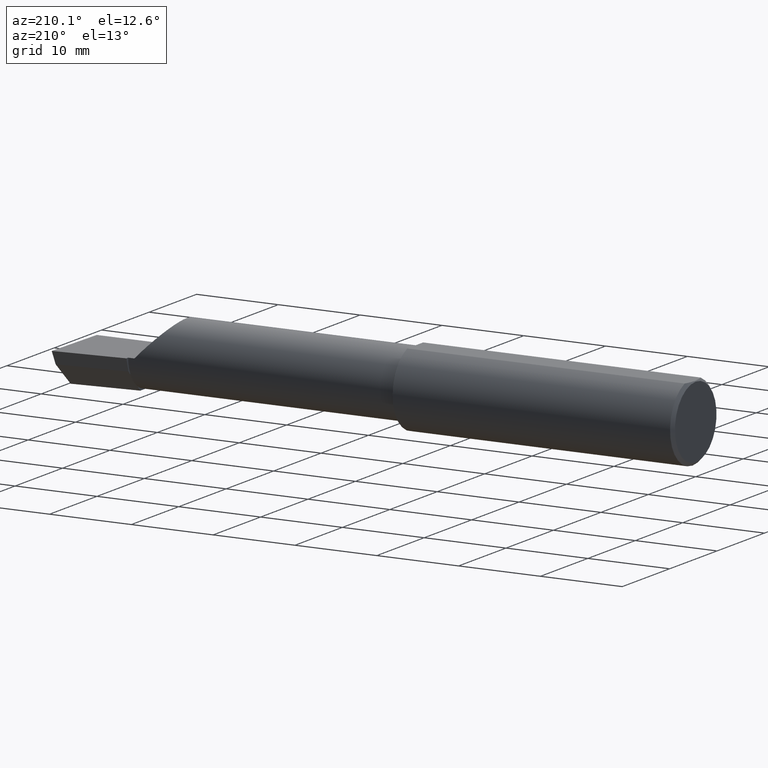
[diagram: clean part render]
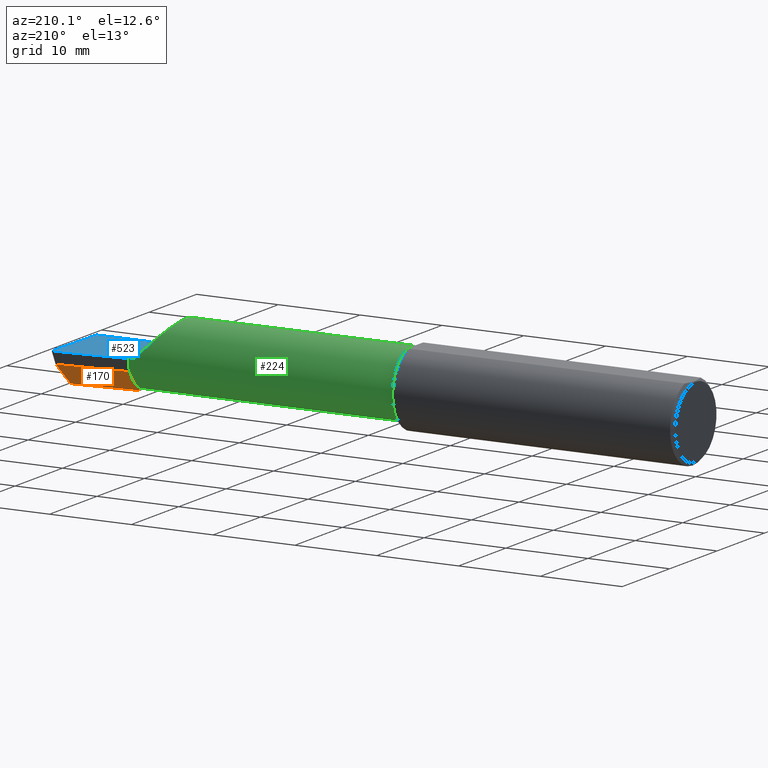
[diagram: same view with three faces highlighted in distinct colors, each labeled with its STEP entity id]
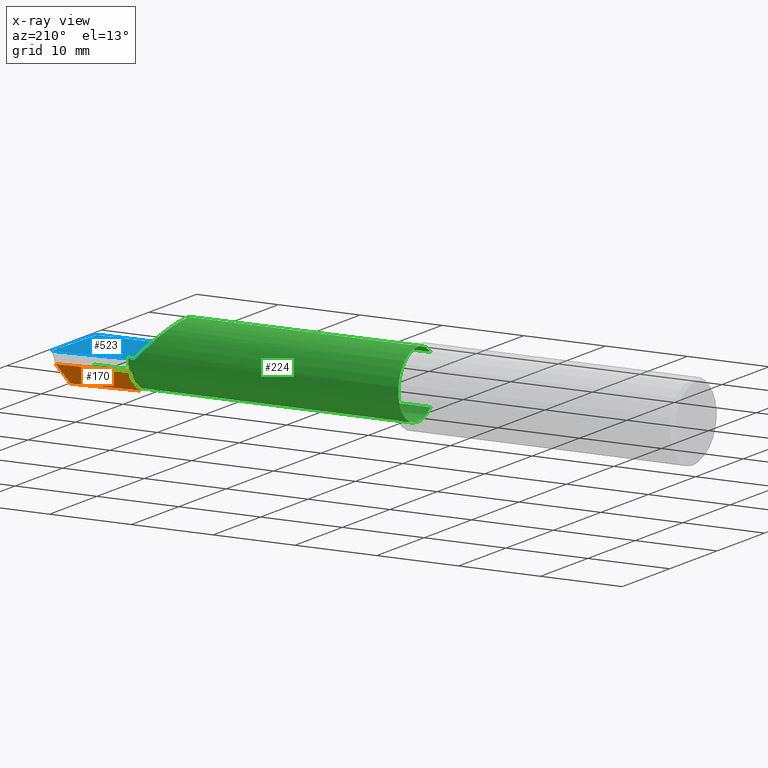
[diagram: x-ray of the same camera — body ghosted, the three highlighted faces saturated]
A machine part, auxiliary view with three faces highlighted in distinct colors.
The next image is the same camera in x-ray (body ghosted, the three faces saturated) — at least one of them is partly hidden behind the body in this view.
Their STEP definitions:

[orange] entity #170 — the highlighted planar face has unit normal (-0.0689, 0.716, -0.6947).
#5 = ORIENTED_EDGE ( 'NONE', *, *, #344, .F. ) ;
#7 = DIRECTION ( 'NONE',  ( -0.06894566448119619773, 0.7160281025913033393, -0.6946583704589935904 ) ) ;
#16 = CARTESIAN_POINT ( 'NONE',  ( 3.011712141217648409, 0.1533490680423131303, -0.06000000000000001166 ) ) ;
#18 = PLANE ( 'NONE',  #258 ) ;
#23 = CARTESIAN_POINT ( 'NONE',  ( 2.659999999999999698, 0.02241901528670484783, -0.1600499999999999701 ) ) ;
#29 = LINE ( 'NONE', #219, #221 ) ;
#30 = CARTESIAN_POINT ( 'NONE',  ( 2.977259974483422056, 0.05296767626088463160, -0.1600499999999999701 ) ) ;
#34 = EDGE_CURVE ( 'NONE', #195, #368, #29, .T. ) ;
#43 = CARTESIAN_POINT ( 'NONE',  ( 2.659999999999999698, 0.1010446066476774901, -0.07900565447499383054 ) ) ;
#69 = VECTOR ( 'NONE', #390, 39.37007874015748854 ) ;
#70 = DIRECTION ( 'NONE',  ( -0.9953961983671800740, -0.09584575252021031166, 0.0000000000000000000 ) ) ;
#78 = EDGE_CURVE ( 'NONE', #266, #195, #428, .T. ) ;
#80 = CARTESIAN_POINT ( 'NONE',  ( 3.011712141217648409, 0.1533490680423131303, -0.06000000000000001166 ) ) ;
#88 = DIRECTION ( 'NONE',  ( 0.1053106618241837072, 0.6976485211320172519, 0.7086580314005208603 ) ) ;
#115 = LINE ( 'NONE', #43, #318 ) ;
#152 = EDGE_CURVE ( 'NONE', #304, #427, #330, .T. ) ;
#160 = DIRECTION ( 'NONE',  ( -3.962974135542378872E-18, -0.6963153109074927682, -0.7177360153954946975 ) ) ;
#169 = DIRECTION ( 'NONE',  ( -3.962974135542378872E-18, -0.6963153109074927682, -0.7177360153954946975 ) ) ;
#170 = ADVANCED_FACE ( 'NONE', ( #244 ), #18, .T. ) ;
#177 = CARTESIAN_POINT ( 'NONE',  ( 2.659999999999999698, 0.1010446066476774901, -0.07900565447499383054 ) ) ;
#182 = CARTESIAN_POINT ( 'NONE',  ( 2.991169618080469661, 0.05430702260361114364, -0.1600499999999999701 ) ) ;
#187 = ORIENTED_EDGE ( 'NONE', *, *, #78, .F. ) ;
#195 = VERTEX_POINT ( 'NONE', #461 ) ;
#214 = DIRECTION ( 'NONE',  ( -3.962974135542378872E-18, -0.6963153109074927682, -0.7177360153954946975 ) ) ;
#219 = CARTESIAN_POINT ( 'NONE',  ( 2.659999999999999698, 0.1010446066476774901, -0.07900565447499383054 ) ) ;
#221 = VECTOR ( 'NONE', #214, 39.37007874015748143 ) ;
#230 = VECTOR ( 'NONE', #88, 39.37007874015748854 ) ;
#243 = ORIENTED_EDGE ( 'NONE', *, *, #404, .F. ) ;
#244 = FACE_OUTER_BOUND ( 'NONE', #360, .T. ) ;
#258 = AXIS2_PLACEMENT_3D ( 'NONE', #16, #7, #348 ) ;
#266 = VERTEX_POINT ( 'NONE', #431 ) ;
#298 = VECTOR ( 'NONE', #169, 39.37007874015748143 ) ;
#304 = VERTEX_POINT ( 'NONE', #434 ) ;
#318 = VECTOR ( 'NONE', #160, 39.37007874015748143 ) ;
#330 = LINE ( 'NONE', #80, #363 ) ;
#338 = ORIENTED_EDGE ( 'NONE', *, *, #518, .T. ) ;
#342 = VERTEX_POINT ( 'NONE', #30 ) ;
#344 = EDGE_CURVE ( 'NONE', #427, #266, #115, .T. ) ;
#348 = DIRECTION ( 'NONE',  ( 0.0000000000000000000, 0.6963153109074926572, 0.7177360153954946975 ) ) ;
#360 = EDGE_LOOP ( 'NONE', ( #243, #338, #421, #187, #5, #438 ) ) ;
#363 = VECTOR ( 'NONE', #70, 39.37007874015748854 ) ;
#368 = VERTEX_POINT ( 'NONE', #23 ) ;
#390 = DIRECTION ( 'NONE',  ( -0.9953961983671800740, -0.09584575252021028391, 0.0000000000000000000 ) ) ;
#396 = CARTESIAN_POINT ( 'NONE',  ( 2.992483720199182518, 0.1538199878950239075, -0.05760614975163596413 ) ) ;
#403 = LINE ( 'NONE', #396, #230 ) ;
#404 = EDGE_CURVE ( 'NONE', #342, #304, #403, .T. ) ;
#419 = CARTESIAN_POINT ( 'NONE',  ( 2.659999999999999698, 0.1194830407249522775, -0.06000000000000001860 ) ) ;
#421 = ORIENTED_EDGE ( 'NONE', *, *, #34, .F. ) ;
#427 = VERTEX_POINT ( 'NONE', #419 ) ;
#428 = LINE ( 'NONE', #177, #298 ) ;
#431 = CARTESIAN_POINT ( 'NONE',  ( 2.659999999999999698, 0.1028057716897403662, -0.07719031082256620768 ) ) ;
#434 = CARTESIAN_POINT ( 'NONE',  ( 2.992127980275562482, 0.1514633278254524928, -0.06000000000000001166 ) ) ;
#438 = ORIENTED_EDGE ( 'NONE', *, *, #152, .F. ) ;
#461 = CARTESIAN_POINT ( 'NONE',  ( 2.659999999999999698, 0.04400172171466146948, -0.1378033461200735832 ) ) ;
#467 = LINE ( 'NONE', #182, #69 ) ;
#518 = EDGE_CURVE ( 'NONE', #342, #368, #467, .T. ) ;

[blue] entity #523 — the highlighted planar face has unit normal (-0, 0, -1).
#8 = CARTESIAN_POINT ( 'NONE',  ( 3.000000000000000444, -0.2500000000000000555, -6.829619984160658046E-17 ) ) ;
#13 = CARTESIAN_POINT ( 'NONE',  ( 2.660000000000000142, 0.1226500000000000368, 3.563723795045364098E-16 ) ) ;
#36 = AXIS2_PLACEMENT_3D ( 'NONE', #8, #592, #353 ) ;
#53 = FACE_OUTER_BOUND ( 'NONE', #596, .T. ) ;
#87 = EDGE_CURVE ( 'NONE', #102, #489, #570, .T. ) ;
#101 = ORIENTED_EDGE ( 'NONE', *, *, #420, .F. ) ;
#102 = VERTEX_POINT ( 'NONE', #166 ) ;
#108 = EDGE_CURVE ( 'NONE', #442, #489, #510, .T. ) ;
#114 = ORIENTED_EDGE ( 'NONE', *, *, #468, .F. ) ;
#143 = LINE ( 'NONE', #454, #534 ) ;
#149 = DIRECTION ( 'NONE',  ( 0.02617694830787012372, 0.9996573249755572599, -3.650474420803376459E-18 ) ) ;
#150 = DIRECTION ( 'NONE',  ( -0.0000000000000000000, 1.000000000000000000, -0.0000000000000000000 ) ) ;
#151 = LINE ( 'NONE', #401, #448 ) ;
#157 = CARTESIAN_POINT ( 'NONE',  ( 2.988992440003205520, -0.2497117568972558599, -6.673801155297120255E-17 ) ) ;
#166 = CARTESIAN_POINT ( 'NONE',  ( 2.659999999999999698, 0.1379117236128415414, 3.606893054134847731E-16 ) ) ;
#171 = ORIENTED_EDGE ( 'NONE', *, *, #87, .F. ) ;
#180 = VERTEX_POINT ( 'NONE', #13 ) ;
#190 = DIRECTION ( 'NONE',  ( 0.9953961983671787417, 0.09584575252022435599, -1.409044964823803883E-16 ) ) ;
#206 = CARTESIAN_POINT ( 'NONE',  ( 0.8393181374772645809, -0.03739999999999999575, 2.375616991505627107E-16 ) ) ;
#254 = VERTEX_POINT ( 'NONE', #579 ) ;
#279 = PLANE ( 'NONE',  #36 ) ;
#295 = DIRECTION ( 'NONE',  ( 1.000000000000000000, -5.691349986800549142E-18, 0.0000000000000000000 ) ) ;
#312 = DIRECTION ( 'NONE',  ( 5.691349986800549142E-18, 1.000000000000000000, -8.056458378187594471E-34 ) ) ;
#321 = CARTESIAN_POINT ( 'NONE',  ( 2.990625440078233499, -0.1873499999999999888, -6.696573958807098242E-17 ) ) ;
#323 = EDGE_CURVE ( 'NONE', #180, #102, #151, .T. ) ;
#333 = CARTESIAN_POINT ( 'NONE',  ( 3.000000000000013323, 0.1706500000000293060, 9.145501435664636045E-14 ) ) ;
#353 = DIRECTION ( 'NONE',  ( -1.000000000000000000, 0.0000000000000000000, 1.415561931153809475E-16 ) ) ;
#380 = CARTESIAN_POINT ( 'NONE',  ( 2.629999999999999893, -0.2500000000000000555, -1.592040838891560883E-17 ) ) ;
#383 = VERTEX_POINT ( 'NONE', #533 ) ;
#395 = DIRECTION ( 'NONE',  ( -1.000000000000000000, -0.0000000000000000000, -0.0000000000000000000 ) ) ;
#400 = LINE ( 'NONE', #503, #593 ) ;
#401 = CARTESIAN_POINT ( 'NONE',  ( 2.659999999999999698, -0.2500000000000000555, -2.016709418237695393E-17 ) ) ;
#417 = ORIENTED_EDGE ( 'NONE', *, *, #323, .F. ) ;
#420 = EDGE_CURVE ( 'NONE', #254, #383, #555, .T. ) ;
#442 = VERTEX_POINT ( 'NONE', #321 ) ;
#448 = VECTOR ( 'NONE', #312, 39.37007874015748143 ) ;
#454 = CARTESIAN_POINT ( 'NONE',  ( 5.044671737413194975E-32, -0.1873499999999999610, 3.563723795045361633E-16 ) ) ;
#463 = VECTOR ( 'NONE', #190, 39.37007874015748143 ) ;
#468 = EDGE_CURVE ( 'NONE', #383, #180, #400, .T. ) ;
#489 = VERTEX_POINT ( 'NONE', #333 ) ;
#490 = ORIENTED_EDGE ( 'NONE', *, *, #587, .F. ) ;
#503 = CARTESIAN_POINT ( 'NONE',  ( 9.109005653874781230E-19, 0.1226499999999999535, 3.563723795045361633E-16 ) ) ;
#510 = LINE ( 'NONE', #157, #578 ) ;
#523 = ADVANCED_FACE ( 'NONE', ( #53 ), #279, .F. ) ;
#533 = CARTESIAN_POINT ( 'NONE',  ( 2.629999999999999893, 0.1226499999999998147, -1.592040838891560883E-17 ) ) ;
#534 = VECTOR ( 'NONE', #395, 39.37007874015748143 ) ;
#541 = VECTOR ( 'NONE', #150, 39.37007874015748143 ) ;
#555 = LINE ( 'NONE', #380, #541 ) ;
#570 = LINE ( 'NONE', #206, #463 ) ;
#578 = VECTOR ( 'NONE', #149, 39.37007874015748854 ) ;
#579 = CARTESIAN_POINT ( 'NONE',  ( 2.629999999999999893, -0.1873499999999999888, -1.592040838891560883E-17 ) ) ;
#582 = ORIENTED_EDGE ( 'NONE', *, *, #108, .T. ) ;
#587 = EDGE_CURVE ( 'NONE', #442, #254, #143, .T. ) ;
#592 = DIRECTION ( 'NONE',  ( -1.415561931153809475E-16, 0.0000000000000000000, -1.000000000000000000 ) ) ;
#593 = VECTOR ( 'NONE', #295, 39.37007874015748143 ) ;
#596 = EDGE_LOOP ( 'NONE', ( #490, #582, #171, #417, #114, #101 ) ) ;

[green] entity #224 — the highlighted cylindrical surface (partial cylindrical patch) has radius 4.0653 mm, axis along (-1, 0, -0).
#13 = CARTESIAN_POINT ( 'NONE',  ( 2.660000000000000142, 0.1226500000000000368, 3.563723795045364098E-16 ) ) ;
#17 = CARTESIAN_POINT ( 'NONE',  ( 2.629999999999999893, 0.1226499999999998147, -1.592040838891560883E-17 ) ) ;
#31 = CARTESIAN_POINT ( 'NONE',  ( 2.010000000000000231, -0.1454917112299465021, 0.1180346748349054287 ) ) ;
#32 = ORIENTED_EDGE ( 'NONE', *, *, #119, .T. ) ;
#49 = DIRECTION ( 'NONE',  ( 1.000000000000000000, -5.691349986800549142E-18, 0.0000000000000000000 ) ) ;
#75 = CARTESIAN_POINT ( 'NONE',  ( 2.974893613600465336, -0.03740000000000000269, -0.1600499999999999701 ) ) ;
#81 = DIRECTION ( 'NONE',  ( 0.0000000000000000000, -1.000000000000000000, 0.0000000000000000000 ) ) ;
#85 = DIRECTION ( 'NONE',  ( -1.000000000000000000, 5.691349986800549142E-18, -0.0000000000000000000 ) ) ;
#89 = CARTESIAN_POINT ( 'NONE',  ( 2.660000000000000142, -0.03740000000000000269, 0.0000000000000000000 ) ) ;
#93 = ORIENTED_EDGE ( 'NONE', *, *, #539, .F. ) ;
#105 = CYLINDRICAL_SURFACE ( 'NONE', #513, 0.1600499999999999701 ) ;
#110 = VECTOR ( 'NONE', #462, 39.37007874015748143 ) ;
#112 = ORIENTED_EDGE ( 'NONE', *, *, #289, .F. ) ;
#119 = EDGE_CURVE ( 'NONE', #195, #537, #172, .T. ) ;
#167 = EDGE_CURVE ( 'NONE', #337, #474, #413, .T. ) ;
#172 = CIRCLE ( 'NONE', #414, 0.1600500000000000533 ) ;
#173 = ORIENTED_EDGE ( 'NONE', *, *, #475, .T. ) ;
#180 = VERTEX_POINT ( 'NONE', #13 ) ;
#184 = CARTESIAN_POINT ( 'NONE',  ( 2.467758842172327327, 0.1226500000000000090, 0.1622411578276713173 ) ) ;
#188 = VECTOR ( 'NONE', #306, 39.37007874015748143 ) ;
#189 = VECTOR ( 'NONE', #280, 39.37007874015748143 ) ;
#191 = EDGE_CURVE ( 'NONE', #180, #266, #205, .T. ) ;
#195 = VERTEX_POINT ( 'NONE', #461 ) ;
#198 = ORIENTED_EDGE ( 'NONE', *, *, #366, .F. ) ;
#203 = CARTESIAN_POINT ( 'NONE',  ( 2.010000000000000231, -0.1454917112299465021, -0.1180346748349054287 ) ) ;
#205 = CIRCLE ( 'NONE', #297, 0.1600500000000000533 ) ;
#213 = CARTESIAN_POINT ( 'NONE',  ( 2.973833329693935212, -0.07789060880782654184, -0.1600499999999999423 ) ) ;
#217 = CARTESIAN_POINT ( 'NONE',  ( 2.659999999999999698, -0.03740000000000000269, -0.1600499999999999701 ) ) ;
#224 = ADVANCED_FACE ( 'NONE', ( #372 ), #105, .T. ) ;
#236 = VERTEX_POINT ( 'NONE', #273 ) ;
#237 = DIRECTION ( 'NONE',  ( -1.000000000000000000, 5.691349986800549142E-18, -0.0000000000000000000 ) ) ;
#242 = ORIENTED_EDGE ( 'NONE', *, *, #524, .T. ) ;
#252 =( BOUNDED_CURVE ( )  B_SPLINE_CURVE ( 3, ( #485, #412, #213, #75 ),
 .UNSPECIFIED., .F., .T. ) 
 B_SPLINE_CURVE_WITH_KNOTS ( ( 4, 4 ),
 ( 5.751779107031518734, 6.493234751459717735 ),
 .UNSPECIFIED. ) 
 CURVE ( )  GEOMETRIC_REPRESENTATION_ITEM ( )  RATIONAL_B_SPLINE_CURVE ( ( 1.000000000000000000, 0.9547092712975354667, 0.9547092712975354667, 1.000000000000000000 ) ) 
 REPRESENTATION_ITEM ( '' )  );
#266 = VERTEX_POINT ( 'NONE', #431 ) ;
#268 = CARTESIAN_POINT ( 'NONE',  ( 2.402393788885674120, -0.02584108761840401072, 0.2276062111143233868 ) ) ;
#272 = CARTESIAN_POINT ( 'NONE',  ( 3.000000000000000444, -0.03740000000000000269, -0.1600499999999999701 ) ) ;
#273 = CARTESIAN_POINT ( 'NONE',  ( 2.974893613600465336, -0.03740000000000000269, -0.1600499999999999701 ) ) ;
#280 = DIRECTION ( 'NONE',  ( 1.000000000000000000, -5.691349986800549142E-18, 0.0000000000000000000 ) ) ;
#281 = CARTESIAN_POINT ( 'NONE',  ( 2.659999999999999698, -0.03740000000000000269, 0.0000000000000000000 ) ) ;
#287 = VERTEX_POINT ( 'NONE', #309 ) ;
#289 = EDGE_CURVE ( 'NONE', #195, #266, #519, .T. ) ;
#295 = DIRECTION ( 'NONE',  ( 1.000000000000000000, -5.691349986800549142E-18, 0.0000000000000000000 ) ) ;
#297 = AXIS2_PLACEMENT_3D ( 'NONE', #313, #430, #397 ) ;
#306 = DIRECTION ( 'NONE',  ( -1.000000000000000000, 5.691349986800548372E-18, -0.0000000000000000000 ) ) ;
#308 = DIRECTION ( 'NONE',  ( 0.0000000000000000000, -1.000000000000000000, 0.0000000000000000000 ) ) ;
#309 = CARTESIAN_POINT ( 'NONE',  ( 1.360000000000000320, -0.1454917112299460580, -0.1180346748349056646 ) ) ;
#313 = CARTESIAN_POINT ( 'NONE',  ( 2.660000000000000142, -0.03740000000000000269, 0.0000000000000000000 ) ) ;
#314 = EDGE_LOOP ( 'NONE', ( #93, #242, #576, #376, #173, #554, #517, #112, #32, #198 ) ) ;
#315 = VERTEX_POINT ( 'NONE', #508 ) ;
#337 = VERTEX_POINT ( 'NONE', #538 ) ;
#345 = EDGE_CURVE ( 'NONE', #337, #287, #494, .T. ) ;
#366 = EDGE_CURVE ( 'NONE', #236, #537, #451, .T. ) ;
#372 = FACE_OUTER_BOUND ( 'NONE', #314, .T. ) ;
#376 = ORIENTED_EDGE ( 'NONE', *, *, #167, .T. ) ;
#383 = VERTEX_POINT ( 'NONE', #533 ) ;
#387 = DIRECTION ( 'NONE',  ( -1.000000000000000000, 5.691349986800549142E-18, -0.0000000000000000000 ) ) ;
#393 = DIRECTION ( 'NONE',  ( 0.0000000000000000000, -1.000000000000000000, -1.776356839400250465E-15 ) ) ;
#397 = DIRECTION ( 'NONE',  ( 0.0000000000000000000, -1.000000000000000000, 0.0000000000000000000 ) ) ;
#400 = LINE ( 'NONE', #503, #593 ) ;
#412 = CARTESIAN_POINT ( 'NONE',  ( 2.974646882977779239, -0.1156304438478837071, -0.1453804992321581779 ) ) ;
#413 = LINE ( 'NONE', #31, #189 ) ;
#414 = AXIS2_PLACEMENT_3D ( 'NONE', #89, #85, #81 ) ;
#422 = CARTESIAN_POINT ( 'NONE',  ( 1.360000000000000320, -0.03739999999999999575, 0.0000000000000000000 ) ) ;
#430 = DIRECTION ( 'NONE',  ( -1.000000000000000000, 5.691349986800549142E-18, -0.0000000000000000000 ) ) ;
#431 = CARTESIAN_POINT ( 'NONE',  ( 2.659999999999999698, 0.1028057716897403662, -0.07719031082256620768 ) ) ;
#443 = CARTESIAN_POINT ( 'NONE',  ( 2.511965325165094853, -0.1454917112299475568, 0.1180346748349042352 ) ) ;
#451 = LINE ( 'NONE', #272, #188 ) ;
#461 = CARTESIAN_POINT ( 'NONE',  ( 2.659999999999999698, 0.04400172171466146948, -0.1378033461200735832 ) ) ;
#462 = DIRECTION ( 'NONE',  ( -1.000000000000000000, 5.691349986800549142E-18, -0.0000000000000000000 ) ) ;
#465 = DIRECTION ( 'NONE',  ( -5.691349986800549913E-18, -1.000000000000000000, 0.0000000000000000000 ) ) ;
#468 = EDGE_CURVE ( 'NONE', #383, #180, #400, .T. ) ;
#474 = VERTEX_POINT ( 'NONE', #507 ) ;
#475 = EDGE_CURVE ( 'NONE', #474, #383, #476, .T. ) ;
#476 =( BOUNDED_CURVE ( )  B_SPLINE_CURVE ( 3, ( #443, #268, #184, #17 ),
 .UNSPECIFIED., .F., .F. ) 
 B_SPLINE_CURVE_WITH_KNOTS ( ( 4, 4 ),
 ( 5.541729662751376573, 7.853981633974482790 ),
 .UNSPECIFIED. ) 
 CURVE ( )  GEOMETRIC_REPRESENTATION_ITEM ( )  RATIONAL_B_SPLINE_CURVE ( ( 1.000000000000000000, 0.6019254882129692064, 0.6019254882129692064, 1.000000000000000000 ) ) 
 REPRESENTATION_ITEM ( '' )  );
#478 = LINE ( 'NONE', #203, #110 ) ;
#485 = CARTESIAN_POINT ( 'NONE',  ( 2.977223734188808368, -0.1454917112299465021, -0.1180346748349054287 ) ) ;
#494 = CIRCLE ( 'NONE', #496, 0.1600499999999998868 ) ;
#496 = AXIS2_PLACEMENT_3D ( 'NONE', #422, #387, #308 ) ;
#503 = CARTESIAN_POINT ( 'NONE',  ( 9.109005653874781230E-19, 0.1226499999999999535, 3.563723795045361633E-16 ) ) ;
#505 = CARTESIAN_POINT ( 'NONE',  ( 0.0000000000000000000, -0.03739999999999998881, 0.0000000000000000000 ) ) ;
#507 = CARTESIAN_POINT ( 'NONE',  ( 2.511965325165094853, -0.1454917112299475568, 0.1180346748349042352 ) ) ;
#508 = CARTESIAN_POINT ( 'NONE',  ( 2.977223734188808368, -0.1454917112299465021, -0.1180346748349054287 ) ) ;
#513 = AXIS2_PLACEMENT_3D ( 'NONE', #505, #237, #465 ) ;
#517 = ORIENTED_EDGE ( 'NONE', *, *, #191, .T. ) ;
#519 = CIRCLE ( 'NONE', #520, 0.1600499999999999701 ) ;
#520 = AXIS2_PLACEMENT_3D ( 'NONE', #281, #49, #393 ) ;
#524 = EDGE_CURVE ( 'NONE', #315, #287, #478, .T. ) ;
#533 = CARTESIAN_POINT ( 'NONE',  ( 2.629999999999999893, 0.1226499999999998147, -1.592040838891560883E-17 ) ) ;
#537 = VERTEX_POINT ( 'NONE', #217 ) ;
#538 = CARTESIAN_POINT ( 'NONE',  ( 1.360000000000000320, -0.1454917112299459747, 0.1180346748349057201 ) ) ;
#539 = EDGE_CURVE ( 'NONE', #315, #236, #252, .T. ) ;
#554 = ORIENTED_EDGE ( 'NONE', *, *, #468, .T. ) ;
#576 = ORIENTED_EDGE ( 'NONE', *, *, #345, .F. ) ;
#593 = VECTOR ( 'NONE', #295, 39.37007874015748143 ) ;